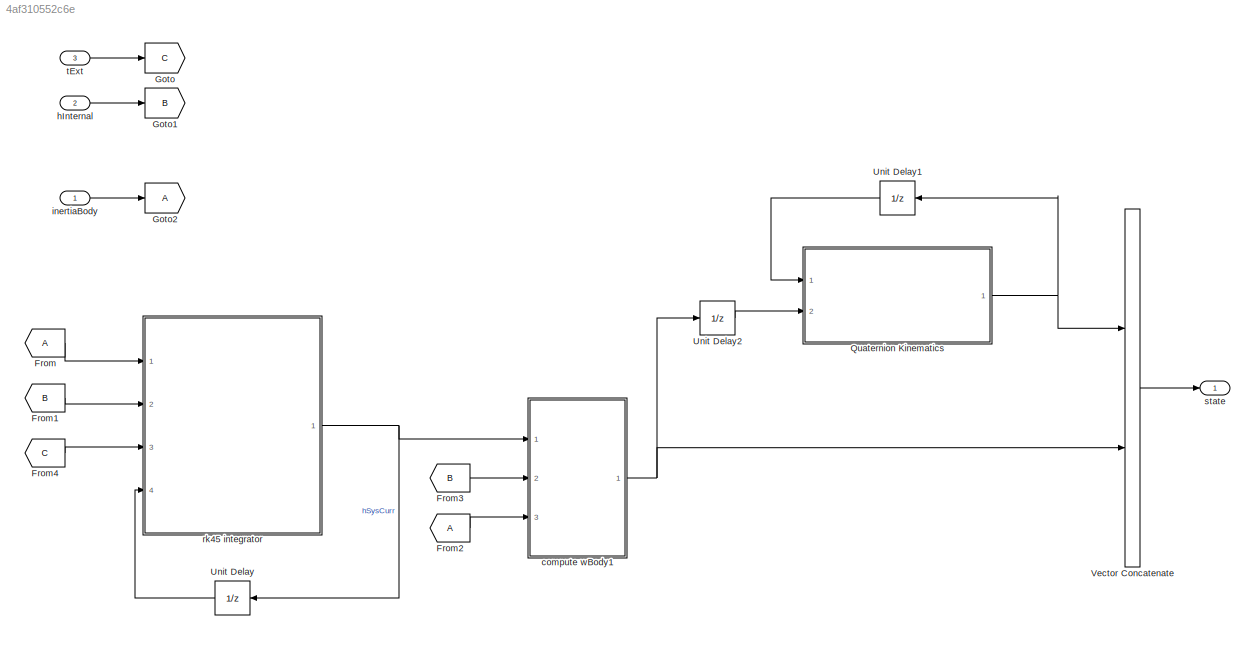
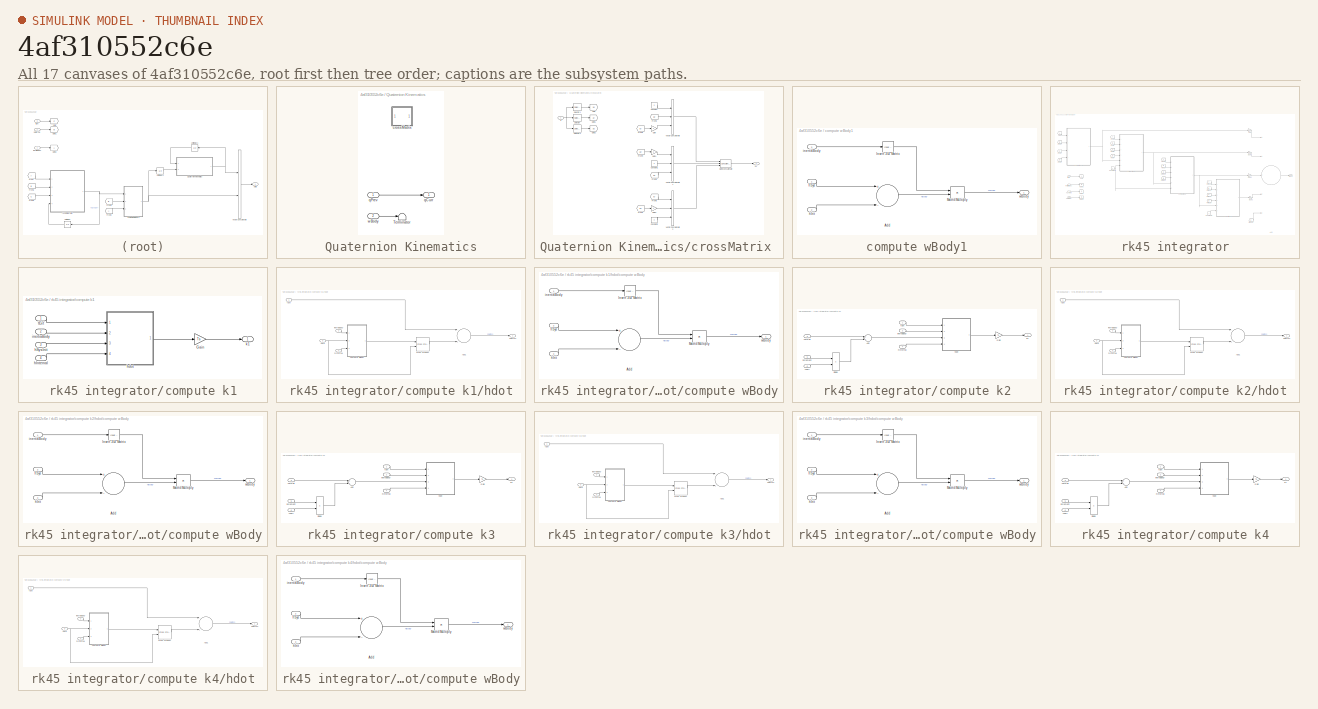
[diagram: thumbnail index - all 17 canvases of the model, root first then tree order]
MODEL slx_4af310552c6e
KIND model
CONFIG AbsTol = auto
CONFIG EnableMultiTasking = off
CONFIG FixedStep = Ts
CONFIG MaxStep = auto
CONFIG MinStep = auto
CONFIG RelTol = 1e-3
CONFIG SampleTimeConstraint = Unconstrained
CONFIG Solver = FixedStepDiscrete
CONFIG SolverName = FixedStepDiscrete
CONFIG StartTime = 0.0
CONFIG StopTime = 10.0
BLOCK [From] From
BLOCK [From] From1
  GotoTag = B
BLOCK [From] From2
BLOCK [From] From3
  GotoTag = B
BLOCK [From] From4
  GotoTag = C
BLOCK [Goto] Goto
  GotoTag = C
BLOCK [Goto] Goto1
  GotoTag = B
BLOCK [Goto] Goto2
BLOCK [SubSystem] Quaternion Kinematics
  Ports = [2, 1]
  RequestExecContextInheritance = off
BLOCK [Terminator] Quaternion Kinematics/Terminator
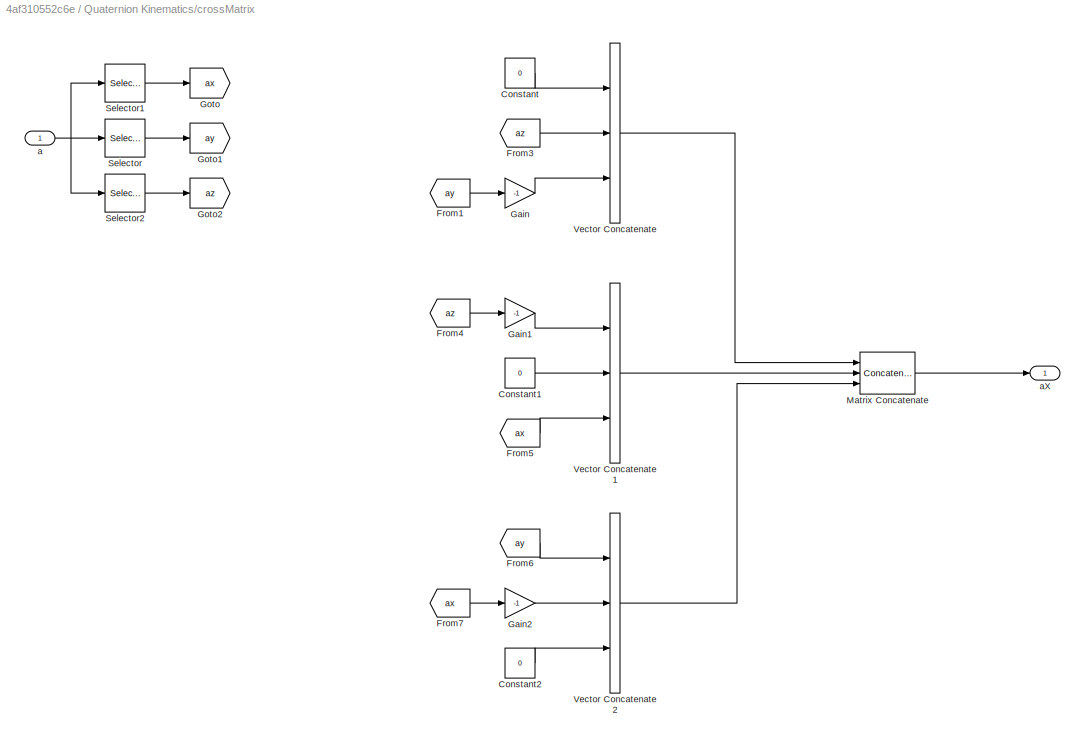
BLOCK [SubSystem] Quaternion Kinematics/crossMatrix 
  Ports = [1, 1]
  RequestExecContextInheritance = off
BLOCK [Constant] Quaternion Kinematics/crossMatrix /Constant
  Value = 0
BLOCK [Constant] Quaternion Kinematics/crossMatrix /Constant1
  Value = 0
BLOCK [Constant] Quaternion Kinematics/crossMatrix /Constant2
  Value = 0
BLOCK [From] Quaternion Kinematics/crossMatrix /From1
  GotoTag = ay
BLOCK [From] Quaternion Kinematics/crossMatrix /From3
  GotoTag = az
BLOCK [From] Quaternion Kinematics/crossMatrix /From4
  GotoTag = az
BLOCK [From] Quaternion Kinematics/crossMatrix /From5
  GotoTag = ax
BLOCK [From] Quaternion Kinematics/crossMatrix /From6
  GotoTag = ay
BLOCK [From] Quaternion Kinematics/crossMatrix /From7
  GotoTag = ax
BLOCK [Gain] Quaternion Kinematics/crossMatrix /Gain
  Gain = -1
  OutDataTypeStr = Inherit: Inherit via internal rule
  ParamDataTypeStr = Inherit: Inherit via internal rule
  SaturateOnIntegerOverflow = off
BLOCK [Gain] Quaternion Kinematics/crossMatrix /Gain1
  Gain = -1
  OutDataTypeStr = Inherit: Inherit via internal rule
  ParamDataTypeStr = Inherit: Inherit via internal rule
  SaturateOnIntegerOverflow = off
BLOCK [Gain] Quaternion Kinematics/crossMatrix /Gain2
  Gain = -1
  OutDataTypeStr = Inherit: Inherit via internal rule
  ParamDataTypeStr = Inherit: Inherit via internal rule
  SaturateOnIntegerOverflow = off
BLOCK [Goto] Quaternion Kinematics/crossMatrix /Goto
  GotoTag = ax
BLOCK [Goto] Quaternion Kinematics/crossMatrix /Goto1
  GotoTag = ay
BLOCK [Goto] Quaternion Kinematics/crossMatrix /Goto2
  GotoTag = az
BLOCK [Concatenate] Quaternion Kinematics/crossMatrix /Matrix Concatenate
  ConcatenateDimension = 2
  Mode = Multidimensional array
  NumInputs = 3
  Ports = [3, 1]
BLOCK [Selector] Quaternion Kinematics/crossMatrix /Selector
  IndexOptions = Index vector (dialog)
  Indices = 2
  InputPortWidth = 3
  OutputSizes = 1
  Ports = [1, 1]
BLOCK [Selector] Quaternion Kinematics/crossMatrix /Selector1
  IndexOptions = Index vector (dialog)
  Indices = 1
  InputPortWidth = 3
  OutputSizes = 1
  Ports = [1, 1]
BLOCK [Selector] Quaternion Kinematics/crossMatrix /Selector2
  IndexOptions = Index vector (dialog)
  Indices = 3
  InputPortWidth = 3
  OutputSizes = 1
  Ports = [1, 1]
BLOCK [Concatenate] Quaternion Kinematics/crossMatrix /Vector Concatenate
  NumInputs = 3
  Ports = [3, 1]
BLOCK [Concatenate] Quaternion Kinematics/crossMatrix /Vector Concatenate1
  NumInputs = 3
  Ports = [3, 1]
BLOCK [Concatenate] Quaternion Kinematics/crossMatrix /Vector Concatenate2
  NumInputs = 3
  Ports = [3, 1]
BLOCK [Inport] Quaternion Kinematics/crossMatrix /a
  IconDisplay = Port number
BLOCK [Outport] Quaternion Kinematics/crossMatrix /aX
  IconDisplay = Port number
BLOCK [Outport] Quaternion Kinematics/qCurr
  IconDisplay = Port number
BLOCK [Inport] Quaternion Kinematics/qPrev
  IconDisplay = Port number
BLOCK [Inport] Quaternion Kinematics/wBody
  IconDisplay = Port number
  Port = 2
BLOCK [UnitDelay] Unit Delay
  InitialCondition = [1 1 1]
  InputProcessing = Elements as channels (sample based)
  SampleTime = -1
BLOCK [UnitDelay] Unit Delay1
  InitialCondition = [1 2 3 4]
  InputProcessing = Elements as channels (sample based)
  SampleTime = -1
BLOCK [UnitDelay] Unit Delay2
  InitialCondition = [1 1 1]
  InputProcessing = Elements as channels (sample based)
  SampleTime = -1
BLOCK [Concatenate] Vector Concatenate
  Ports = [2, 1]
BLOCK [SubSystem] compute wBody1
  Ports = [3, 1]
  RequestExecContextInheritance = off
BLOCK [Sum] compute wBody1/Add
  InputSameDT = off
  Inputs = +-
  OutDataTypeStr = Inherit: Inherit via internal rule
  Ports = [2, 1]
  SaturateOnIntegerOverflow = off
BLOCK [Reference] compute wBody1/Invert 3x3 Matrix  REF=aerolibutil/Invert 
3x3 Matrix
  Ports = [1, 1]
  SourceBlock = aerolibutil/Invert \n3x3 Matrix
  SourceProductBaseCode = AE
  SourceProductName = Aerospace Blockset
  SourceType = Invert 3x3 Matrix
BLOCK [Product] compute wBody1/Matrix Multiply
  InputSameDT = off
  Multiplication = Matrix(*)
  OutDataTypeStr = Inherit: Inherit via internal rule
  Ports = [2, 1]
  RndMeth = Floor
  SaturateOnIntegerOverflow = off
BLOCK [Inport] compute wBody1/hInt
  IconDisplay = Port number
  Port = 2
BLOCK [Inport] compute wBody1/hSys
  IconDisplay = Port number
BLOCK [Inport] compute wBody1/inertiaBody
  IconDisplay = Port number
  OutDataTypeStr = double
  Port = 3
  SignalType = real
  VarSizeSig = No
BLOCK [Outport] compute wBody1/wBody
  IconDisplay = Port number
BLOCK [Inport] hInternal
  IconDisplay = Port number
  OutDataTypeStr = Bus: massProperties
  Port = 2
BLOCK [Inport] inertiaBody
  IconDisplay = Port number
  OutDataTypeStr = Bus: DynamicsInput
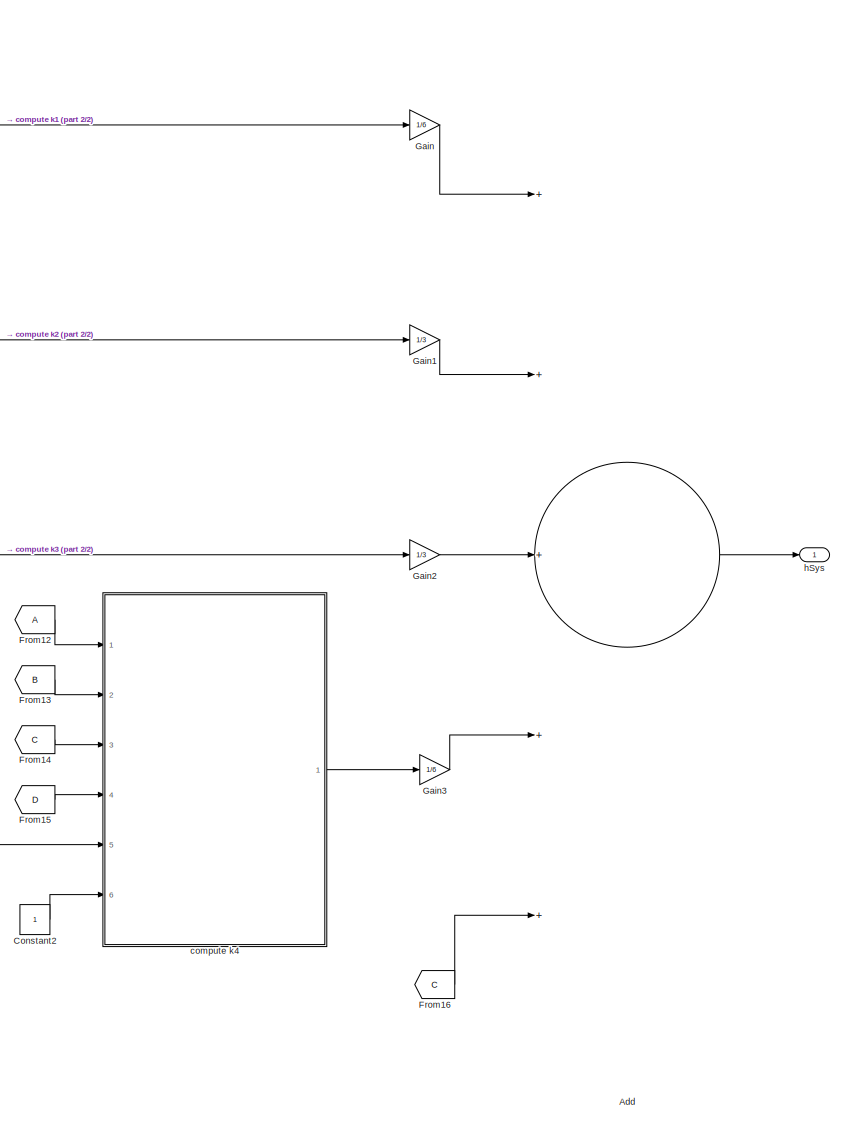
[diagram: rk45 integrator - part 1/2, right side, full height]
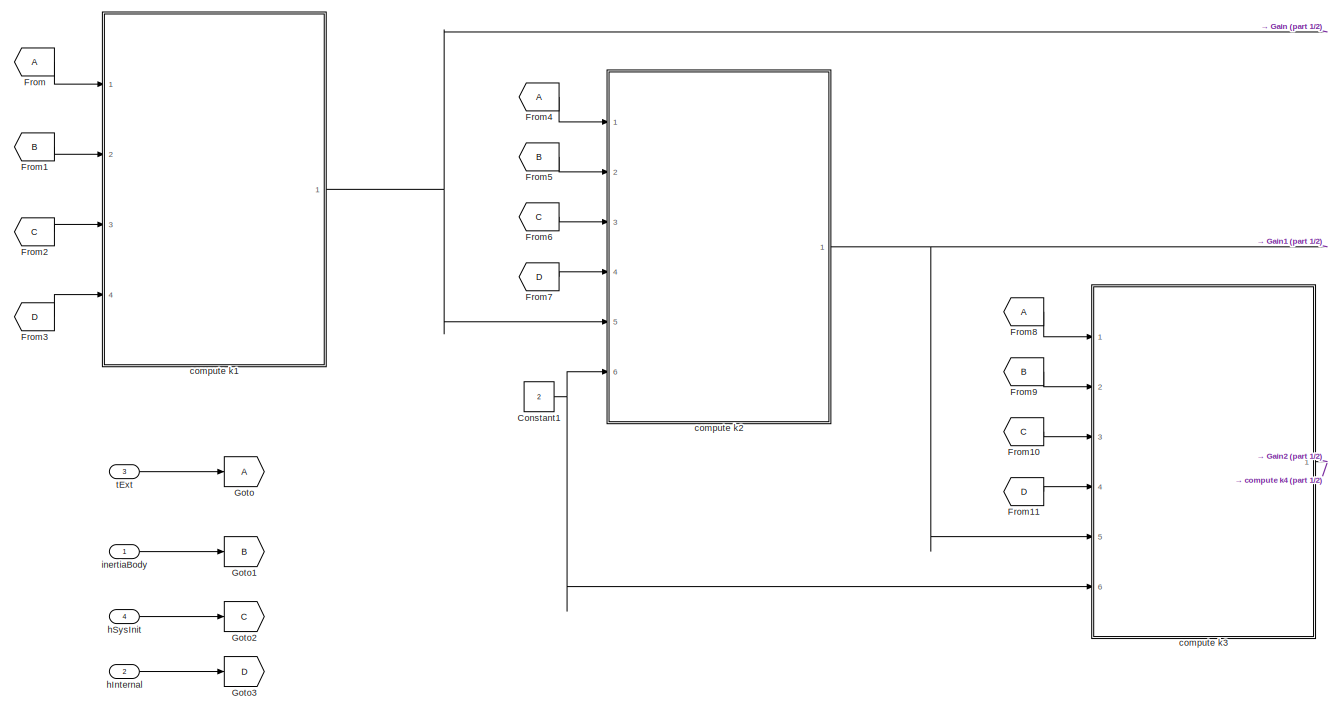
[diagram: rk45 integrator - part 2/2, middle left region]
BLOCK [SubSystem] rk45 integrator
  Ports = [4, 1]
  RequestExecContextInheritance = off
BLOCK [Sum] rk45 integrator/Add
  InputSameDT = off
  Inputs = +++++
  OutDataTypeStr = Inherit: Inherit via internal rule
  Ports = [5, 1]
  SaturateOnIntegerOverflow = off
BLOCK [Constant] rk45 integrator/Constant1
  Value = 2
BLOCK [Constant] rk45 integrator/Constant2
BLOCK [From] rk45 integrator/From
BLOCK [From] rk45 integrator/From1
  GotoTag = B
BLOCK [From] rk45 integrator/From10
  GotoTag = C
BLOCK [From] rk45 integrator/From11
  GotoTag = D
BLOCK [From] rk45 integrator/From12
BLOCK [From] rk45 integrator/From13
  GotoTag = B
BLOCK [From] rk45 integrator/From14
  GotoTag = C
BLOCK [From] rk45 integrator/From15
  GotoTag = D
BLOCK [From] rk45 integrator/From16
  GotoTag = C
BLOCK [From] rk45 integrator/From2
  GotoTag = C
BLOCK [From] rk45 integrator/From3
  GotoTag = D
BLOCK [From] rk45 integrator/From4
BLOCK [From] rk45 integrator/From5
  GotoTag = B
BLOCK [From] rk45 integrator/From6
  GotoTag = C
BLOCK [From] rk45 integrator/From7
  GotoTag = D
BLOCK [From] rk45 integrator/From8
BLOCK [From] rk45 integrator/From9
  GotoTag = B
BLOCK [Gain] rk45 integrator/Gain
  Gain = 1/6
  OutDataTypeStr = Inherit: Inherit via internal rule
  ParamDataTypeStr = Inherit: Inherit via internal rule
  SaturateOnIntegerOverflow = off
BLOCK [Gain] rk45 integrator/Gain1
  Gain = 1/3
  OutDataTypeStr = Inherit: Inherit via internal rule
  ParamDataTypeStr = Inherit: Inherit via internal rule
  SaturateOnIntegerOverflow = off
BLOCK [Gain] rk45 integrator/Gain2
  Gain = 1/3
  OutDataTypeStr = Inherit: Inherit via internal rule
  ParamDataTypeStr = Inherit: Inherit via internal rule
  SaturateOnIntegerOverflow = off
BLOCK [Gain] rk45 integrator/Gain3
  Gain = 1/6
  OutDataTypeStr = Inherit: Inherit via internal rule
  ParamDataTypeStr = Inherit: Inherit via internal rule
  SaturateOnIntegerOverflow = off
BLOCK [Goto] rk45 integrator/Goto
BLOCK [Goto] rk45 integrator/Goto1
  GotoTag = B
BLOCK [Goto] rk45 integrator/Goto2
  GotoTag = C
BLOCK [Goto] rk45 integrator/Goto3
  GotoTag = D
BLOCK [SubSystem] rk45 integrator/compute k1
  Ports = [4, 1]
  RequestExecContextInheritance = off
BLOCK [Gain] rk45 integrator/compute k1/Gain
  Gain = Ts
  OutDataTypeStr = Inherit: Inherit via internal rule
  ParamDataTypeStr = Inherit: Inherit via internal rule
  SaturateOnIntegerOverflow = off
BLOCK [Inport] rk45 integrator/compute k1/hInternal
  IconDisplay = Port number
  Port = 4
BLOCK [Inport] rk45 integrator/compute k1/hSysInit
  IconDisplay = Port number
  Port = 3
BLOCK [SubSystem] rk45 integrator/compute k1/hdot
  Ports = [4, 1]
  RequestExecContextInheritance = off
BLOCK [Sum] rk45 integrator/compute k1/hdot/Add1
  InputSameDT = off
  Inputs = -+
  OutDataTypeStr = Inherit: Inherit via internal rule
  Ports = [2, 1]
  SaturateOnIntegerOverflow = off
BLOCK [Reference] rk45 integrator/compute k1/hdot/Cross Product  REF=vrlib/Utilities/Cross Product
  Ports = [2, 1]
  SourceBlock = vrlib/Utilities/Cross Product
  SourceProductBaseCode = VR
  SourceProductName = Simulink 3D Animation
  SourceType = Cross Product
BLOCK [SubSystem] rk45 integrator/compute k1/hdot/compute wBody
  Ports = [3, 1]
  RequestExecContextInheritance = off
BLOCK [Sum] rk45 integrator/compute k1/hdot/compute wBody/Add
  InputSameDT = off
  Inputs = +-
  OutDataTypeStr = Inherit: Inherit via internal rule
  Ports = [2, 1]
  SaturateOnIntegerOverflow = off
BLOCK [Reference] rk45 integrator/compute k1/hdot/compute wBody/Invert 3x3 Matrix  REF=aerolibutil/Invert 
3x3 Matrix
  Ports = [1, 1]
  SourceBlock = aerolibutil/Invert \n3x3 Matrix
  SourceProductBaseCode = AE
  SourceProductName = Aerospace Blockset
  SourceType = Invert 3x3 Matrix
BLOCK [Product] rk45 integrator/compute k1/hdot/compute wBody/Matrix Multiply
  InputSameDT = off
  Multiplication = Matrix(*)
  OutDataTypeStr = Inherit: Inherit via internal rule
  Ports = [2, 1]
  RndMeth = Floor
  SaturateOnIntegerOverflow = off
BLOCK [Inport] rk45 integrator/compute k1/hdot/compute wBody/hInt
  IconDisplay = Port number
  Port = 3
BLOCK [Inport] rk45 integrator/compute k1/hdot/compute wBody/hSys
  IconDisplay = Port number
  Port = 2
BLOCK [Inport] rk45 integrator/compute k1/hdot/compute wBody/inertiaBody
  IconDisplay = Port number
BLOCK [Outport] rk45 integrator/compute k1/hdot/compute wBody/wBody
  IconDisplay = Port number
BLOCK [Outport] rk45 integrator/compute k1/hdot/hDotSys
  IconDisplay = Port number
BLOCK [Inport] rk45 integrator/compute k1/hdot/hInternal
  IconDisplay = Port number
  Port = 4
BLOCK [Inport] rk45 integrator/compute k1/hdot/hSys
  IconDisplay = Port number
  Port = 3
BLOCK [Inport] rk45 integrator/compute k1/hdot/inertiaBody
  IconDisplay = Port number
  Port = 2
BLOCK [Inport] rk45 integrator/compute k1/hdot/tExt
  IconDisplay = Port number
BLOCK [Inport] rk45 integrator/compute k1/inertiaBody
  IconDisplay = Port number
  Port = 2
BLOCK [Outport] rk45 integrator/compute k1/k1
  IconDisplay = Port number
BLOCK [Inport] rk45 integrator/compute k1/tExt
  IconDisplay = Port number
BLOCK [SubSystem] rk45 integrator/compute k2
  Ports = [6, 1]
  RequestExecContextInheritance = off
BLOCK [Sum] rk45 integrator/compute k2/Add
  InputSameDT = off
  OutDataTypeStr = Inherit: Inherit via internal rule
  Ports = [2, 1]
  SaturateOnIntegerOverflow = off
BLOCK [Product] rk45 integrator/compute k2/Divide
  InputSameDT = off
  Inputs = */
  OutDataTypeStr = Inherit: Inherit via internal rule
  Ports = [2, 1]
  RndMeth = Floor
  SaturateOnIntegerOverflow = off
BLOCK [Gain] rk45 integrator/compute k2/Gain
  Gain = Ts
  OutDataTypeStr = Inherit: Inherit via internal rule
  ParamDataTypeStr = Inherit: Inherit via internal rule
  SaturateOnIntegerOverflow = off
BLOCK [Inport] rk45 integrator/compute k2/coeff
  IconDisplay = Port number
  Port = 6
BLOCK [Inport] rk45 integrator/compute k2/hInternal
  IconDisplay = Port number
  Port = 4
BLOCK [Inport] rk45 integrator/compute k2/hSysInit
  IconDisplay = Port number
  Port = 3
BLOCK [SubSystem] rk45 integrator/compute k2/hdot
  Ports = [4, 1]
  RequestExecContextInheritance = off
BLOCK [Sum] rk45 integrator/compute k2/hdot/Add1
  InputSameDT = off
  Inputs = -+
  OutDataTypeStr = Inherit: Inherit via internal rule
  Ports = [2, 1]
  SaturateOnIntegerOverflow = off
BLOCK [Reference] rk45 integrator/compute k2/hdot/Cross Product  REF=vrlib/Utilities/Cross Product
  Ports = [2, 1]
  SourceBlock = vrlib/Utilities/Cross Product
  SourceProductBaseCode = VR
  SourceProductName = Simulink 3D Animation
  SourceType = Cross Product
BLOCK [SubSystem] rk45 integrator/compute k2/hdot/compute wBody
  Ports = [3, 1]
  RequestExecContextInheritance = off
BLOCK [Sum] rk45 integrator/compute k2/hdot/compute wBody/Add
  InputSameDT = off
  Inputs = +-
  OutDataTypeStr = Inherit: Inherit via internal rule
  Ports = [2, 1]
  SaturateOnIntegerOverflow = off
BLOCK [Reference] rk45 integrator/compute k2/hdot/compute wBody/Invert 3x3 Matrix  REF=aerolibutil/Invert 
3x3 Matrix
  Ports = [1, 1]
  SourceBlock = aerolibutil/Invert \n3x3 Matrix
  SourceProductBaseCode = AE
  SourceProductName = Aerospace Blockset
  SourceType = Invert 3x3 Matrix
BLOCK [Product] rk45 integrator/compute k2/hdot/compute wBody/Matrix Multiply
  InputSameDT = off
  Multiplication = Matrix(*)
  OutDataTypeStr = Inherit: Inherit via internal rule
  Ports = [2, 1]
  RndMeth = Floor
  SaturateOnIntegerOverflow = off
BLOCK [Inport] rk45 integrator/compute k2/hdot/compute wBody/hInt
  IconDisplay = Port number
  Port = 3
BLOCK [Inport] rk45 integrator/compute k2/hdot/compute wBody/hSys
  IconDisplay = Port number
  Port = 2
BLOCK [Inport] rk45 integrator/compute k2/hdot/compute wBody/inertiaBody
  IconDisplay = Port number
BLOCK [Outport] rk45 integrator/compute k2/hdot/compute wBody/wBody
  IconDisplay = Port number
BLOCK [Outport] rk45 integrator/compute k2/hdot/hDotSys
  IconDisplay = Port number
BLOCK [Inport] rk45 integrator/compute k2/hdot/hInternal
  IconDisplay = Port number
  Port = 4
BLOCK [Inport] rk45 integrator/compute k2/hdot/hSys
  IconDisplay = Port number
  Port = 3
BLOCK [Inport] rk45 integrator/compute k2/hdot/inertiaBody
  IconDisplay = Port number
  Port = 2
BLOCK [Inport] rk45 integrator/compute k2/hdot/tExt
  IconDisplay = Port number
BLOCK [Inport] rk45 integrator/compute k2/increment
  IconDisplay = Port number
  Port = 5
BLOCK [Inport] rk45 integrator/compute k2/inertiaBody
  IconDisplay = Port number
  Port = 2
BLOCK [Outport] rk45 integrator/compute k2/k2
  IconDisplay = Port number
BLOCK [Inport] rk45 integrator/compute k2/tExt
  IconDisplay = Port number
BLOCK [SubSystem] rk45 integrator/compute k3
  Ports = [6, 1]
  RequestExecContextInheritance = off
BLOCK [Sum] rk45 integrator/compute k3/Add
  InputSameDT = off
  OutDataTypeStr = Inherit: Inherit via internal rule
  Ports = [2, 1]
  SaturateOnIntegerOverflow = off
BLOCK [Product] rk45 integrator/compute k3/Divide
  InputSameDT = off
  Inputs = */
  OutDataTypeStr = Inherit: Inherit via internal rule
  Ports = [2, 1]
  RndMeth = Floor
  SaturateOnIntegerOverflow = off
BLOCK [Gain] rk45 integrator/compute k3/Gain
  Gain = Ts
  OutDataTypeStr = Inherit: Inherit via internal rule
  ParamDataTypeStr = Inherit: Inherit via internal rule
  SaturateOnIntegerOverflow = off
BLOCK [Inport] rk45 integrator/compute k3/coeff
  IconDisplay = Port number
  Port = 6
BLOCK [Inport] rk45 integrator/compute k3/hInternal
  IconDisplay = Port number
  Port = 4
BLOCK [Inport] rk45 integrator/compute k3/hSysInit
  IconDisplay = Port number
  Port = 3
BLOCK [SubSystem] rk45 integrator/compute k3/hdot
  Ports = [4, 1]
  RequestExecContextInheritance = off
BLOCK [Sum] rk45 integrator/compute k3/hdot/Add1
  InputSameDT = off
  Inputs = -+
  OutDataTypeStr = Inherit: Inherit via internal rule
  Ports = [2, 1]
  SaturateOnIntegerOverflow = off
BLOCK [Reference] rk45 integrator/compute k3/hdot/Cross Product  REF=vrlib/Utilities/Cross Product
  Ports = [2, 1]
  SourceBlock = vrlib/Utilities/Cross Product
  SourceProductBaseCode = VR
  SourceProductName = Simulink 3D Animation
  SourceType = Cross Product
BLOCK [SubSystem] rk45 integrator/compute k3/hdot/compute wBody
  Ports = [3, 1]
  RequestExecContextInheritance = off
BLOCK [Sum] rk45 integrator/compute k3/hdot/compute wBody/Add
  InputSameDT = off
  Inputs = +-
  OutDataTypeStr = Inherit: Inherit via internal rule
  Ports = [2, 1]
  SaturateOnIntegerOverflow = off
BLOCK [Reference] rk45 integrator/compute k3/hdot/compute wBody/Invert 3x3 Matrix  REF=aerolibutil/Invert 
3x3 Matrix
  Ports = [1, 1]
  SourceBlock = aerolibutil/Invert \n3x3 Matrix
  SourceProductBaseCode = AE
  SourceProductName = Aerospace Blockset
  SourceType = Invert 3x3 Matrix
BLOCK [Product] rk45 integrator/compute k3/hdot/compute wBody/Matrix Multiply
  InputSameDT = off
  Multiplication = Matrix(*)
  OutDataTypeStr = Inherit: Inherit via internal rule
  Ports = [2, 1]
  RndMeth = Floor
  SaturateOnIntegerOverflow = off
BLOCK [Inport] rk45 integrator/compute k3/hdot/compute wBody/hInt
  IconDisplay = Port number
  Port = 3
BLOCK [Inport] rk45 integrator/compute k3/hdot/compute wBody/hSys
  IconDisplay = Port number
  Port = 2
BLOCK [Inport] rk45 integrator/compute k3/hdot/compute wBody/inertiaBody
  IconDisplay = Port number
BLOCK [Outport] rk45 integrator/compute k3/hdot/compute wBody/wBody
  IconDisplay = Port number
BLOCK [Outport] rk45 integrator/compute k3/hdot/hDotSys
  IconDisplay = Port number
BLOCK [Inport] rk45 integrator/compute k3/hdot/hInternal
  IconDisplay = Port number
  Port = 4
BLOCK [Inport] rk45 integrator/compute k3/hdot/hSys
  IconDisplay = Port number
  Port = 3
BLOCK [Inport] rk45 integrator/compute k3/hdot/inertiaBody
  IconDisplay = Port number
  Port = 2
BLOCK [Inport] rk45 integrator/compute k3/hdot/tExt
  IconDisplay = Port number
BLOCK [Inport] rk45 integrator/compute k3/increment
  IconDisplay = Port number
  Port = 5
BLOCK [Inport] rk45 integrator/compute k3/inertiaBody
  IconDisplay = Port number
  Port = 2
BLOCK [Outport] rk45 integrator/compute k3/k3
  IconDisplay = Port number
BLOCK [Inport] rk45 integrator/compute k3/tExt
  IconDisplay = Port number
BLOCK [SubSystem] rk45 integrator/compute k4
  Ports = [6, 1]
  RequestExecContextInheritance = off
BLOCK [Sum] rk45 integrator/compute k4/Add
  InputSameDT = off
  OutDataTypeStr = Inherit: Inherit via internal rule
  Ports = [2, 1]
  SaturateOnIntegerOverflow = off
BLOCK [Product] rk45 integrator/compute k4/Divide
  InputSameDT = off
  Inputs = */
  OutDataTypeStr = Inherit: Inherit via internal rule
  Ports = [2, 1]
  RndMeth = Floor
  SaturateOnIntegerOverflow = off
BLOCK [Gain] rk45 integrator/compute k4/Gain
  Gain = Ts
  OutDataTypeStr = Inherit: Inherit via internal rule
  ParamDataTypeStr = Inherit: Inherit via internal rule
  SaturateOnIntegerOverflow = off
BLOCK [Inport] rk45 integrator/compute k4/coeff
  IconDisplay = Port number
  Port = 6
BLOCK [Inport] rk45 integrator/compute k4/hInternal
  IconDisplay = Port number
  Port = 4
BLOCK [Inport] rk45 integrator/compute k4/hSysInit
  IconDisplay = Port number
  Port = 3
BLOCK [SubSystem] rk45 integrator/compute k4/hdot
  Ports = [4, 1]
  RequestExecContextInheritance = off
BLOCK [Sum] rk45 integrator/compute k4/hdot/Add1
  InputSameDT = off
  Inputs = -+
  OutDataTypeStr = Inherit: Inherit via internal rule
  Ports = [2, 1]
  SaturateOnIntegerOverflow = off
BLOCK [Reference] rk45 integrator/compute k4/hdot/Cross Product  REF=vrlib/Utilities/Cross Product
  Ports = [2, 1]
  SourceBlock = vrlib/Utilities/Cross Product
  SourceProductBaseCode = VR
  SourceProductName = Simulink 3D Animation
  SourceType = Cross Product
BLOCK [SubSystem] rk45 integrator/compute k4/hdot/compute wBody
  Ports = [3, 1]
  RequestExecContextInheritance = off
BLOCK [Sum] rk45 integrator/compute k4/hdot/compute wBody/Add
  InputSameDT = off
  Inputs = +-
  OutDataTypeStr = Inherit: Inherit via internal rule
  Ports = [2, 1]
  SaturateOnIntegerOverflow = off
BLOCK [Reference] rk45 integrator/compute k4/hdot/compute wBody/Invert 3x3 Matrix  REF=aerolibutil/Invert 
3x3 Matrix
  Ports = [1, 1]
  SourceBlock = aerolibutil/Invert \n3x3 Matrix
  SourceProductBaseCode = AE
  SourceProductName = Aerospace Blockset
  SourceType = Invert 3x3 Matrix
BLOCK [Product] rk45 integrator/compute k4/hdot/compute wBody/Matrix Multiply
  InputSameDT = off
  Multiplication = Matrix(*)
  OutDataTypeStr = Inherit: Inherit via internal rule
  Ports = [2, 1]
  RndMeth = Floor
  SaturateOnIntegerOverflow = off
BLOCK [Inport] rk45 integrator/compute k4/hdot/compute wBody/hInt
  IconDisplay = Port number
  Port = 3
BLOCK [Inport] rk45 integrator/compute k4/hdot/compute wBody/hSys
  IconDisplay = Port number
  Port = 2
BLOCK [Inport] rk45 integrator/compute k4/hdot/compute wBody/inertiaBody
  IconDisplay = Port number
BLOCK [Outport] rk45 integrator/compute k4/hdot/compute wBody/wBody
  IconDisplay = Port number
BLOCK [Outport] rk45 integrator/compute k4/hdot/hDotSys
  IconDisplay = Port number
BLOCK [Inport] rk45 integrator/compute k4/hdot/hInternal
  IconDisplay = Port number
  Port = 4
BLOCK [Inport] rk45 integrator/compute k4/hdot/hSys
  IconDisplay = Port number
  Port = 3
BLOCK [Inport] rk45 integrator/compute k4/hdot/inertiaBody
  IconDisplay = Port number
  Port = 2
BLOCK [Inport] rk45 integrator/compute k4/hdot/tExt
  IconDisplay = Port number
BLOCK [Inport] rk45 integrator/compute k4/increment
  IconDisplay = Port number
  Port = 5
BLOCK [Inport] rk45 integrator/compute k4/inertiaBody
  IconDisplay = Port number
  Port = 2
BLOCK [Outport] rk45 integrator/compute k4/k4
  IconDisplay = Port number
BLOCK [Inport] rk45 integrator/compute k4/tExt
  IconDisplay = Port number
BLOCK [Inport] rk45 integrator/hInternal
  IconDisplay = Port number
  Port = 2
BLOCK [Outport] rk45 integrator/hSys
  IconDisplay = Port number
BLOCK [Inport] rk45 integrator/hSysInit
  IconDisplay = Port number
  Port = 4
BLOCK [Inport] rk45 integrator/inertiaBody
  IconDisplay = Port number
BLOCK [Inport] rk45 integrator/tExt
  IconDisplay = Port number
  Port = 3
BLOCK [Outport] state 
  IconDisplay = Port number
BLOCK [Inport] tExt
  IconDisplay = Port number
  Port = 3
LINE From1:1 -> rk45 integrator:2
LINE From2:1 -> compute wBody1:3
LINE From3:1 -> compute wBody1:2
LINE From4:1 -> rk45 integrator:3
LINE From:1 -> rk45 integrator:1
LINE Quaternion Kinematics/crossMatrix /Constant1:1 -> Quaternion Kinematics/crossMatrix /Vector Concatenate1:2
LINE Quaternion Kinematics/crossMatrix /Constant2:1 -> Quaternion Kinematics/crossMatrix /Vector Concatenate2:3
LINE Quaternion Kinematics/crossMatrix /Constant:1 -> Quaternion Kinematics/crossMatrix /Vector Concatenate:1
LINE Quaternion Kinematics/crossMatrix /From1:1 -> Quaternion Kinematics/crossMatrix /Gain:1
LINE Quaternion Kinematics/crossMatrix /From3:1 -> Quaternion Kinematics/crossMatrix /Vector Concatenate:2
LINE Quaternion Kinematics/crossMatrix /From4:1 -> Quaternion Kinematics/crossMatrix /Gain1:1
LINE Quaternion Kinematics/crossMatrix /From5:1 -> Quaternion Kinematics/crossMatrix /Vector Concatenate1:3
LINE Quaternion Kinematics/crossMatrix /From6:1 -> Quaternion Kinematics/crossMatrix /Vector Concatenate2:1
LINE Quaternion Kinematics/crossMatrix /From7:1 -> Quaternion Kinematics/crossMatrix /Gain2:1
LINE Quaternion Kinematics/crossMatrix /Gain1:1 -> Quaternion Kinematics/crossMatrix /Vector Concatenate1:1
LINE Quaternion Kinematics/crossMatrix /Gain2:1 -> Quaternion Kinematics/crossMatrix /Vector Concatenate2:2
LINE Quaternion Kinematics/crossMatrix /Gain:1 -> Quaternion Kinematics/crossMatrix /Vector Concatenate:3
LINE Quaternion Kinematics/crossMatrix /Matrix Concatenate:1 -> Quaternion Kinematics/crossMatrix /aX:1
LINE Quaternion Kinematics/crossMatrix /Selector1:1 -> Quaternion Kinematics/crossMatrix /Goto:1
LINE Quaternion Kinematics/crossMatrix /Selector2:1 -> Quaternion Kinematics/crossMatrix /Goto2:1
LINE Quaternion Kinematics/crossMatrix /Selector:1 -> Quaternion Kinematics/crossMatrix /Goto1:1
LINE Quaternion Kinematics/crossMatrix /Vector Concatenate1:1 -> Quaternion Kinematics/crossMatrix /Matrix Concatenate:2
LINE Quaternion Kinematics/crossMatrix /Vector Concatenate2:1 -> Quaternion Kinematics/crossMatrix /Matrix Concatenate:3
LINE Quaternion Kinematics/crossMatrix /Vector Concatenate:1 -> Quaternion Kinematics/crossMatrix /Matrix Concatenate:1
NET Quaternion Kinematics/crossMatrix /a:1 -> Quaternion Kinematics/crossMatrix /Selector1:1, Quaternion Kinematics/crossMatrix /Selector2:1, Quaternion Kinematics/crossMatrix /Selector:1
LINE Quaternion Kinematics/qPrev:1 -> Quaternion Kinematics/qCurr:1
LINE Quaternion Kinematics/wBody:1 -> Quaternion Kinematics/Terminator:1
NET Quaternion Kinematics:1 -> Unit Delay1:1, Vector Concatenate:1
LINE Unit Delay1:1 -> Quaternion Kinematics:1
LINE Unit Delay2:1 -> Quaternion Kinematics:2
LINE Unit Delay:1 -> rk45 integrator:4
LINE Vector Concatenate:1 -> state :1
LINE compute wBody1/Add:1 -> compute wBody1/Matrix Multiply:2
LINE compute wBody1/Invert 3x3 Matrix:1 -> compute wBody1/Matrix Multiply:1
LINE compute wBody1/Matrix Multiply:1 -> compute wBody1/wBody:1
LINE compute wBody1/hInt:1 -> compute wBody1/Add:2
LINE compute wBody1/hSys:1 -> compute wBody1/Add:1
LINE compute wBody1/inertiaBody:1 -> compute wBody1/Invert 3x3 Matrix:1
NET compute wBody1:1 -> Unit Delay2:1, Vector Concatenate:2
LINE hInternal:1 -> Goto1:1
LINE inertiaBody:1 -> Goto2:1
LINE rk45 integrator/Add:1 -> rk45 integrator/hSys:1
NET rk45 integrator/Constant1:1 -> rk45 integrator/compute k2:6, rk45 integrator/compute k3:6
LINE rk45 integrator/Constant2:1 -> rk45 integrator/compute k4:6
LINE rk45 integrator/From10:1 -> rk45 integrator/compute k3:3
LINE rk45 integrator/From11:1 -> rk45 integrator/compute k3:4
LINE rk45 integrator/From12:1 -> rk45 integrator/compute k4:1
LINE rk45 integrator/From13:1 -> rk45 integrator/compute k4:2
LINE rk45 integrator/From14:1 -> rk45 integrator/compute k4:3
LINE rk45 integrator/From15:1 -> rk45 integrator/compute k4:4
LINE rk45 integrator/From16:1 -> rk45 integrator/Add:5
LINE rk45 integrator/From1:1 -> rk45 integrator/compute k1:2
LINE rk45 integrator/From2:1 -> rk45 integrator/compute k1:3
LINE rk45 integrator/From3:1 -> rk45 integrator/compute k1:4
LINE rk45 integrator/From4:1 -> rk45 integrator/compute k2:1
LINE rk45 integrator/From5:1 -> rk45 integrator/compute k2:2
LINE rk45 integrator/From6:1 -> rk45 integrator/compute k2:3
LINE rk45 integrator/From7:1 -> rk45 integrator/compute k2:4
LINE rk45 integrator/From8:1 -> rk45 integrator/compute k3:1
LINE rk45 integrator/From9:1 -> rk45 integrator/compute k3:2
LINE rk45 integrator/From:1 -> rk45 integrator/compute k1:1
LINE rk45 integrator/Gain1:1 -> rk45 integrator/Add:2
LINE rk45 integrator/Gain2:1 -> rk45 integrator/Add:3
LINE rk45 integrator/Gain3:1 -> rk45 integrator/Add:4
LINE rk45 integrator/Gain:1 -> rk45 integrator/Add:1
LINE rk45 integrator/compute k1/Gain:1 -> rk45 integrator/compute k1/k1:1
LINE rk45 integrator/compute k1/hInternal:1 -> rk45 integrator/compute k1/hdot:4
LINE rk45 integrator/compute k1/hSysInit:1 -> rk45 integrator/compute k1/hdot:3
LINE rk45 integrator/compute k1/hdot/Add1:1 -> rk45 integrator/compute k1/hdot/hDotSys:1
LINE rk45 integrator/compute k1/hdot/Cross Product:1 -> rk45 integrator/compute k1/hdot/Add1:2
LINE rk45 integrator/compute k1/hdot/compute wBody/Add:1 -> rk45 integrator/compute k1/hdot/compute wBody/Matrix Multiply:2
LINE rk45 integrator/compute k1/hdot/compute wBody/Invert 3x3 Matrix:1 -> rk45 integrator/compute k1/hdot/compute wBody/Matrix Multiply:1
LINE rk45 integrator/compute k1/hdot/compute wBody/Matrix Multiply:1 -> rk45 integrator/compute k1/hdot/compute wBody/wBody:1
LINE rk45 integrator/compute k1/hdot/compute wBody/hInt:1 -> rk45 integrator/compute k1/hdot/compute wBody/Add:2
LINE rk45 integrator/compute k1/hdot/compute wBody/hSys:1 -> rk45 integrator/compute k1/hdot/compute wBody/Add:1
LINE rk45 integrator/compute k1/hdot/compute wBody/inertiaBody:1 -> rk45 integrator/compute k1/hdot/compute wBody/Invert 3x3 Matrix:1
LINE rk45 integrator/compute k1/hdot/compute wBody:1 -> rk45 integrator/compute k1/hdot/Cross Product:1
LINE rk45 integrator/compute k1/hdot/hInternal:1 -> rk45 integrator/compute k1/hdot/compute wBody:3
NET rk45 integrator/compute k1/hdot/hSys:1 -> rk45 integrator/compute k1/hdot/Cross Product:2, rk45 integrator/compute k1/hdot/compute wBody:2
LINE rk45 integrator/compute k1/hdot/inertiaBody:1 -> rk45 integrator/compute k1/hdot/compute wBody:1
LINE rk45 integrator/compute k1/hdot/tExt:1 -> rk45 integrator/compute k1/hdot/Add1:1
LINE rk45 integrator/compute k1/hdot:1 -> rk45 integrator/compute k1/Gain:1
LINE rk45 integrator/compute k1/inertiaBody:1 -> rk45 integrator/compute k1/hdot:2
LINE rk45 integrator/compute k1/tExt:1 -> rk45 integrator/compute k1/hdot:1
NET rk45 integrator/compute k1:1 -> rk45 integrator/Gain:1, rk45 integrator/compute k2:5
LINE rk45 integrator/compute k2/Add:1 -> rk45 integrator/compute k2/hdot:3
LINE rk45 integrator/compute k2/Divide:1 -> rk45 integrator/compute k2/Add:2
LINE rk45 integrator/compute k2/Gain:1 -> rk45 integrator/compute k2/k2:1
LINE rk45 integrator/compute k2/coeff:1 -> rk45 integrator/compute k2/Divide:2
LINE rk45 integrator/compute k2/hInternal:1 -> rk45 integrator/compute k2/hdot:4
LINE rk45 integrator/compute k2/hSysInit:1 -> rk45 integrator/compute k2/Add:1
LINE rk45 integrator/compute k2/hdot/Add1:1 -> rk45 integrator/compute k2/hdot/hDotSys:1
LINE rk45 integrator/compute k2/hdot/Cross Product:1 -> rk45 integrator/compute k2/hdot/Add1:2
LINE rk45 integrator/compute k2/hdot/compute wBody/Add:1 -> rk45 integrator/compute k2/hdot/compute wBody/Matrix Multiply:2
LINE rk45 integrator/compute k2/hdot/compute wBody/Invert 3x3 Matrix:1 -> rk45 integrator/compute k2/hdot/compute wBody/Matrix Multiply:1
LINE rk45 integrator/compute k2/hdot/compute wBody/Matrix Multiply:1 -> rk45 integrator/compute k2/hdot/compute wBody/wBody:1
LINE rk45 integrator/compute k2/hdot/compute wBody/hInt:1 -> rk45 integrator/compute k2/hdot/compute wBody/Add:2
LINE rk45 integrator/compute k2/hdot/compute wBody/hSys:1 -> rk45 integrator/compute k2/hdot/compute wBody/Add:1
LINE rk45 integrator/compute k2/hdot/compute wBody/inertiaBody:1 -> rk45 integrator/compute k2/hdot/compute wBody/Invert 3x3 Matrix:1
LINE rk45 integrator/compute k2/hdot/compute wBody:1 -> rk45 integrator/compute k2/hdot/Cross Product:1
LINE rk45 integrator/compute k2/hdot/hInternal:1 -> rk45 integrator/compute k2/hdot/compute wBody:3
NET rk45 integrator/compute k2/hdot/hSys:1 -> rk45 integrator/compute k2/hdot/Cross Product:2, rk45 integrator/compute k2/hdot/compute wBody:2
LINE rk45 integrator/compute k2/hdot/inertiaBody:1 -> rk45 integrator/compute k2/hdot/compute wBody:1
LINE rk45 integrator/compute k2/hdot/tExt:1 -> rk45 integrator/compute k2/hdot/Add1:1
LINE rk45 integrator/compute k2/hdot:1 -> rk45 integrator/compute k2/Gain:1
LINE rk45 integrator/compute k2/increment:1 -> rk45 integrator/compute k2/Divide:1
LINE rk45 integrator/compute k2/inertiaBody:1 -> rk45 integrator/compute k2/hdot:2
LINE rk45 integrator/compute k2/tExt:1 -> rk45 integrator/compute k2/hdot:1
NET rk45 integrator/compute k2:1 -> rk45 integrator/Gain1:1, rk45 integrator/compute k3:5
LINE rk45 integrator/compute k3/Add:1 -> rk45 integrator/compute k3/hdot:3
LINE rk45 integrator/compute k3/Divide:1 -> rk45 integrator/compute k3/Add:2
LINE rk45 integrator/compute k3/Gain:1 -> rk45 integrator/compute k3/k3:1
LINE rk45 integrator/compute k3/coeff:1 -> rk45 integrator/compute k3/Divide:2
LINE rk45 integrator/compute k3/hInternal:1 -> rk45 integrator/compute k3/hdot:4
LINE rk45 integrator/compute k3/hSysInit:1 -> rk45 integrator/compute k3/Add:1
LINE rk45 integrator/compute k3/hdot/Add1:1 -> rk45 integrator/compute k3/hdot/hDotSys:1
LINE rk45 integrator/compute k3/hdot/Cross Product:1 -> rk45 integrator/compute k3/hdot/Add1:2
LINE rk45 integrator/compute k3/hdot/compute wBody/Add:1 -> rk45 integrator/compute k3/hdot/compute wBody/Matrix Multiply:2
LINE rk45 integrator/compute k3/hdot/compute wBody/Invert 3x3 Matrix:1 -> rk45 integrator/compute k3/hdot/compute wBody/Matrix Multiply:1
LINE rk45 integrator/compute k3/hdot/compute wBody/Matrix Multiply:1 -> rk45 integrator/compute k3/hdot/compute wBody/wBody:1
LINE rk45 integrator/compute k3/hdot/compute wBody/hInt:1 -> rk45 integrator/compute k3/hdot/compute wBody/Add:2
LINE rk45 integrator/compute k3/hdot/compute wBody/hSys:1 -> rk45 integrator/compute k3/hdot/compute wBody/Add:1
LINE rk45 integrator/compute k3/hdot/compute wBody/inertiaBody:1 -> rk45 integrator/compute k3/hdot/compute wBody/Invert 3x3 Matrix:1
LINE rk45 integrator/compute k3/hdot/compute wBody:1 -> rk45 integrator/compute k3/hdot/Cross Product:1
LINE rk45 integrator/compute k3/hdot/hInternal:1 -> rk45 integrator/compute k3/hdot/compute wBody:3
NET rk45 integrator/compute k3/hdot/hSys:1 -> rk45 integrator/compute k3/hdot/Cross Product:2, rk45 integrator/compute k3/hdot/compute wBody:2
LINE rk45 integrator/compute k3/hdot/inertiaBody:1 -> rk45 integrator/compute k3/hdot/compute wBody:1
LINE rk45 integrator/compute k3/hdot/tExt:1 -> rk45 integrator/compute k3/hdot/Add1:1
LINE rk45 integrator/compute k3/hdot:1 -> rk45 integrator/compute k3/Gain:1
LINE rk45 integrator/compute k3/increment:1 -> rk45 integrator/compute k3/Divide:1
LINE rk45 integrator/compute k3/inertiaBody:1 -> rk45 integrator/compute k3/hdot:2
LINE rk45 integrator/compute k3/tExt:1 -> rk45 integrator/compute k3/hdot:1
NET rk45 integrator/compute k3:1 -> rk45 integrator/Gain2:1, rk45 integrator/compute k4:5
LINE rk45 integrator/compute k4/Add:1 -> rk45 integrator/compute k4/hdot:3
LINE rk45 integrator/compute k4/Divide:1 -> rk45 integrator/compute k4/Add:2
LINE rk45 integrator/compute k4/Gain:1 -> rk45 integrator/compute k4/k4:1
LINE rk45 integrator/compute k4/coeff:1 -> rk45 integrator/compute k4/Divide:2
LINE rk45 integrator/compute k4/hInternal:1 -> rk45 integrator/compute k4/hdot:4
LINE rk45 integrator/compute k4/hSysInit:1 -> rk45 integrator/compute k4/Add:1
LINE rk45 integrator/compute k4/hdot/Add1:1 -> rk45 integrator/compute k4/hdot/hDotSys:1
LINE rk45 integrator/compute k4/hdot/Cross Product:1 -> rk45 integrator/compute k4/hdot/Add1:2
LINE rk45 integrator/compute k4/hdot/compute wBody/Add:1 -> rk45 integrator/compute k4/hdot/compute wBody/Matrix Multiply:2
LINE rk45 integrator/compute k4/hdot/compute wBody/Invert 3x3 Matrix:1 -> rk45 integrator/compute k4/hdot/compute wBody/Matrix Multiply:1
LINE rk45 integrator/compute k4/hdot/compute wBody/Matrix Multiply:1 -> rk45 integrator/compute k4/hdot/compute wBody/wBody:1
LINE rk45 integrator/compute k4/hdot/compute wBody/hInt:1 -> rk45 integrator/compute k4/hdot/compute wBody/Add:2
LINE rk45 integrator/compute k4/hdot/compute wBody/hSys:1 -> rk45 integrator/compute k4/hdot/compute wBody/Add:1
LINE rk45 integrator/compute k4/hdot/compute wBody/inertiaBody:1 -> rk45 integrator/compute k4/hdot/compute wBody/Invert 3x3 Matrix:1
LINE rk45 integrator/compute k4/hdot/compute wBody:1 -> rk45 integrator/compute k4/hdot/Cross Product:1
LINE rk45 integrator/compute k4/hdot/hInternal:1 -> rk45 integrator/compute k4/hdot/compute wBody:3
NET rk45 integrator/compute k4/hdot/hSys:1 -> rk45 integrator/compute k4/hdot/Cross Product:2, rk45 integrator/compute k4/hdot/compute wBody:2
LINE rk45 integrator/compute k4/hdot/inertiaBody:1 -> rk45 integrator/compute k4/hdot/compute wBody:1
LINE rk45 integrator/compute k4/hdot/tExt:1 -> rk45 integrator/compute k4/hdot/Add1:1
LINE rk45 integrator/compute k4/hdot:1 -> rk45 integrator/compute k4/Gain:1
LINE rk45 integrator/compute k4/increment:1 -> rk45 integrator/compute k4/Divide:1
LINE rk45 integrator/compute k4/inertiaBody:1 -> rk45 integrator/compute k4/hdot:2
LINE rk45 integrator/compute k4/tExt:1 -> rk45 integrator/compute k4/hdot:1
LINE rk45 integrator/compute k4:1 -> rk45 integrator/Gain3:1
LINE rk45 integrator/hInternal:1 -> rk45 integrator/Goto3:1
LINE rk45 integrator/hSysInit:1 -> rk45 integrator/Goto2:1
LINE rk45 integrator/inertiaBody:1 -> rk45 integrator/Goto1:1
LINE rk45 integrator/tExt:1 -> rk45 integrator/Goto:1
NET rk45 integrator:1 -> Unit Delay:1, compute wBody1:1
LINE tExt:1 -> Goto:1
note: NET lines group one-source signal fan-out (src -> all destinations, sorted); 1:1 wires keep LINE
